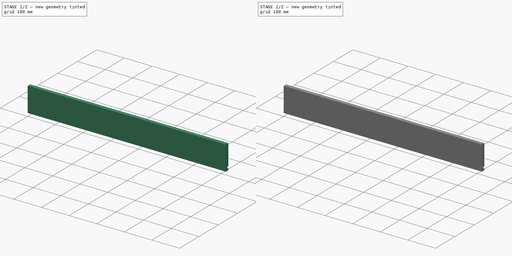
[diagram: build sequence overview — one tinted view per stage of 2, left to right]
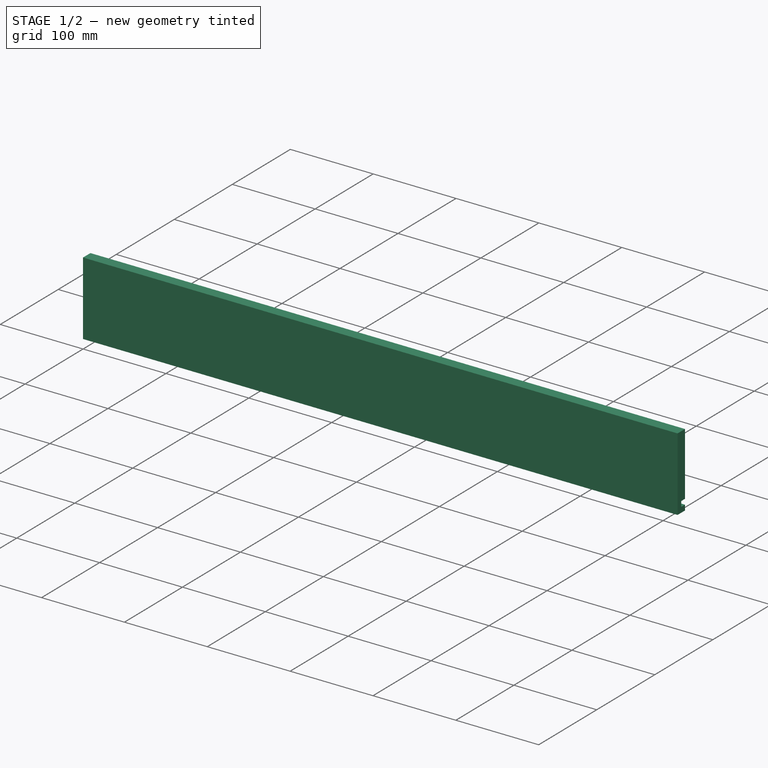
[diagram: stage 1 of 2 — iso view after this stage's code; geometry added in this stage tinted green]
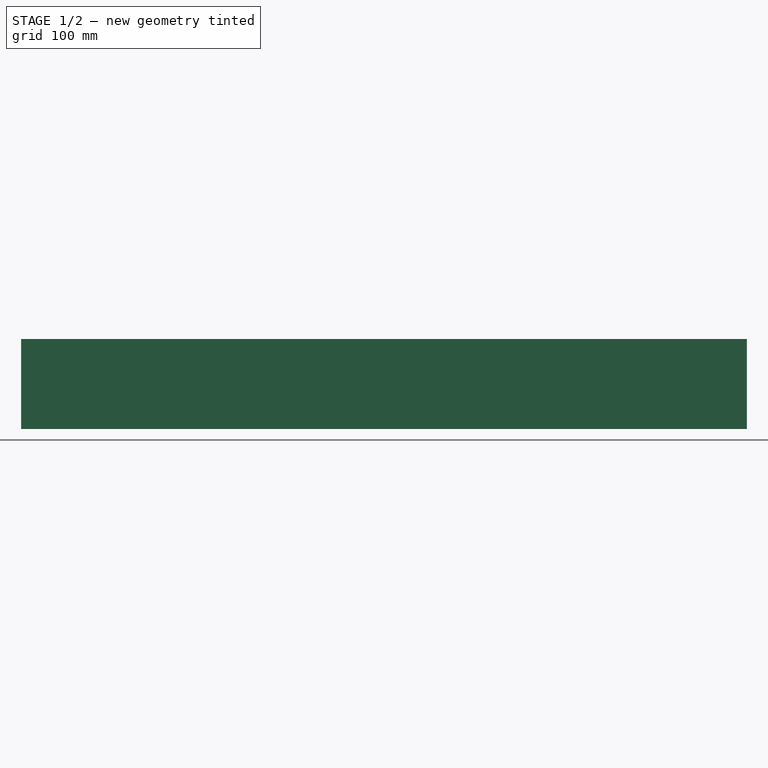
[diagram: stage 1 of 2 — front view after this stage's code; geometry added in this stage tinted green]
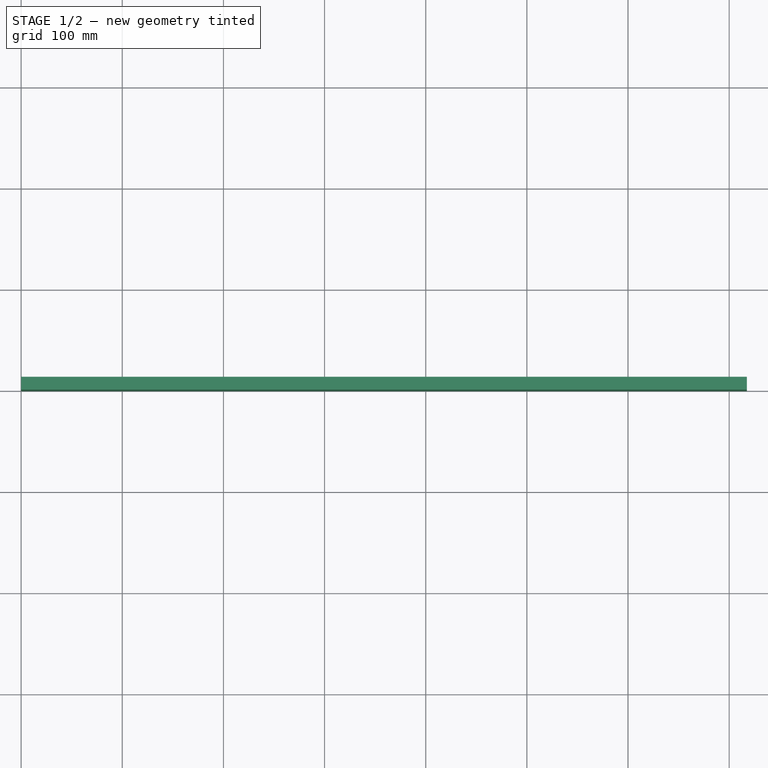
[diagram: stage 1 of 2 — top view after this stage's code; geometry added in this stage tinted green]
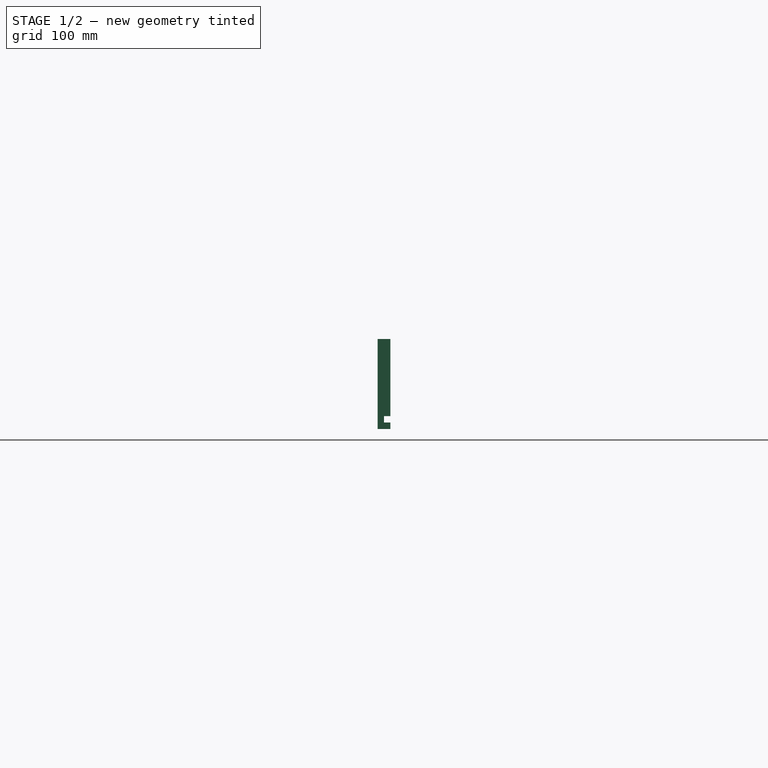
[diagram: stage 1 of 2 — right view after this stage's code; geometry added in this stage tinted green]
FCSTD DOCUMENT  (FreeCAD 0.19R24291 (Git))
Label: front2
License: All rights reserved
LicenseURL: http://en.wikipedia.org/wiki/All_rights_reserved
objects: Sketcher::SketchObject×2, PartDesign::Pad×1, PartDesign::Hole×1, PartDesign::Body×1
note: 7 computed .brp shape members not serialized (recipe doc carries the construction recipe); baked Part::Feature solids carry a one-line shape summary decoded from their .brp

FEATURE [Sketcher::SketchObject] Sketch
  FullyConstrained = true
  MapMode = 5
  Placement = pos=(0,0,0) rot=(0.57735,0.57735,0.57735;2.0944rad)
  Support = -> [YZ_Plane]
  expr: Constraints[22] = 1 / 4 * 25.4
  expr: Constraints[19] = 1 / 4 * 25.4
  expr: Constraints[7] = 0.5 * 25.4
  expr: Constraints[5] = 3.5 * 25.4
  sketch-geometry (8):
    g0: LineSegment StartX=0 StartY=0 StartZ=0 EndX=12.7 EndY=0 EndZ=0
    g1: LineSegment StartX=12.7 StartY=88.9 StartZ=0 EndX=0 EndY=88.9 EndZ=0
    g2: LineSegment StartX=0 StartY=88.9 StartZ=0 EndX=0 EndY=0 EndZ=0
    g3: LineSegment StartX=12.7 StartY=0 StartZ=0 EndX=12.7 EndY=6.35 EndZ=0
    g4: LineSegment StartX=12.7 StartY=6.35 StartZ=0 EndX=6.35 EndY=6.35 EndZ=0
    g5: LineSegment StartX=6.35 StartY=6.35 StartZ=0 EndX=6.35 EndY=12.7 EndZ=0
    g6: LineSegment StartX=6.35 StartY=12.7 StartZ=0 EndX=12.7 EndY=12.7 EndZ=0
    g7: LineSegment StartX=12.7 StartY=12.7 StartZ=0 EndX=12.7 EndY=88.9 EndZ=0
  constraints (23):
    c: Coincident(g1,g2)
    c: Coincident(g2,g0)
    c: Horizontal(g0)
    c: Horizontal(g1)
    c: Vertical(g2)
    c: DistanceY(g2,g2) = 88.9
    c: Coincident(g0,g-1)
    c: DistanceX(g0,g0) = 12.7
    c: Coincident(g0,g3)
    c: Vertical(g3)
    c: Coincident(g3,g4)
    c: Horizontal(g4)
    c: Coincident(g4,g5)
    c: Vertical(g5)
    c: Coincident(g5,g6)
    c: Horizontal(g6)
    c: Coincident(g6,g7)
    c: Coincident(g7,g1)
    c: Vertical(g7)
    c: DistanceY(g3,g3) = 6.35
    c: Equal(g0,g1)
    c: Equal(g3,g5)
    c: DistanceX(g6,g6) = 6.35
FEATURE [PartDesign::Pad] Pad
  Direction = (1,1,1)
  Length = 717.5
  Length2 = 100
  Placement = pos=(0,0,0) rot=(0.57735,0.57735,0.57735;2.0944rad)
  Profile = -> Sketch
  Type = 0
  expr: Length = 717.5
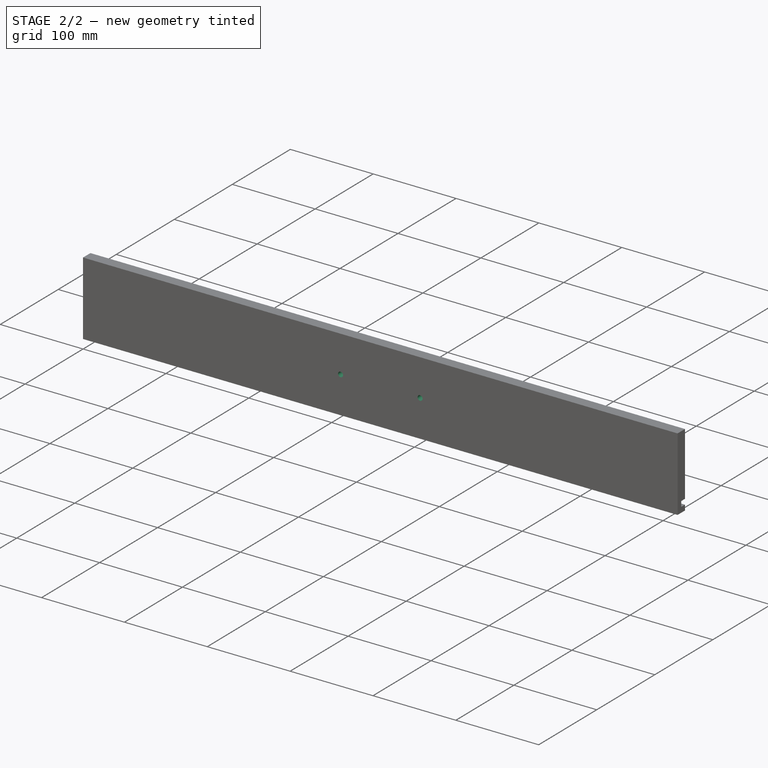
[diagram: stage 2 of 2 — iso view after this stage's code; geometry added in this stage tinted green]
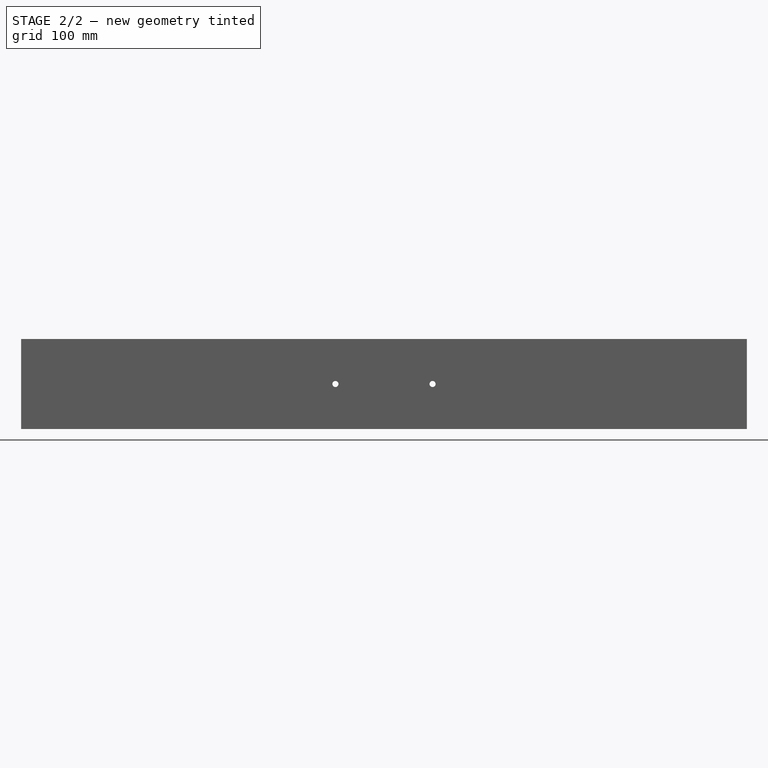
[diagram: stage 2 of 2 — front view after this stage's code; geometry added in this stage tinted green]
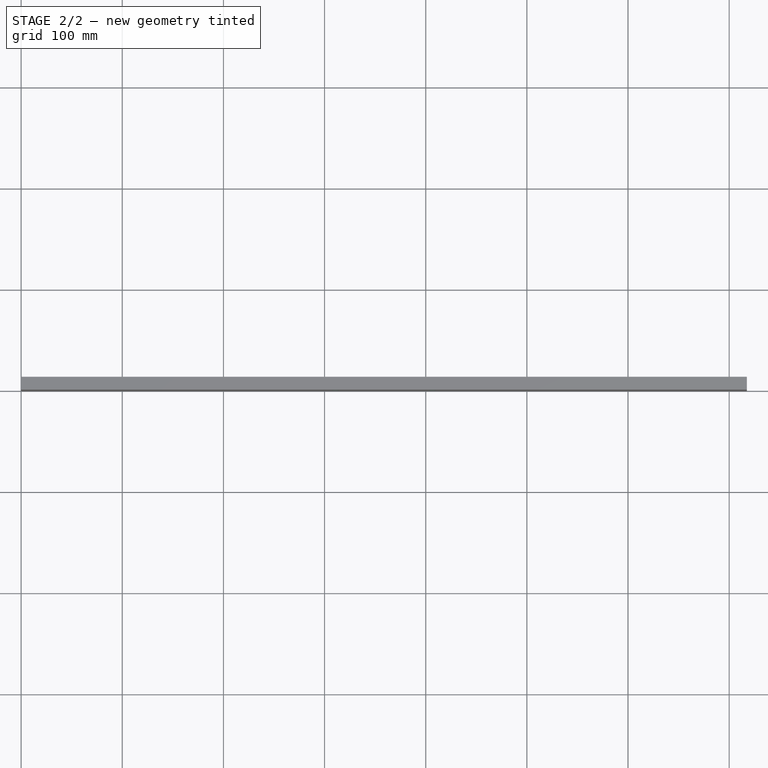
[diagram: stage 2 of 2 — top view after this stage's code; geometry added in this stage tinted green]
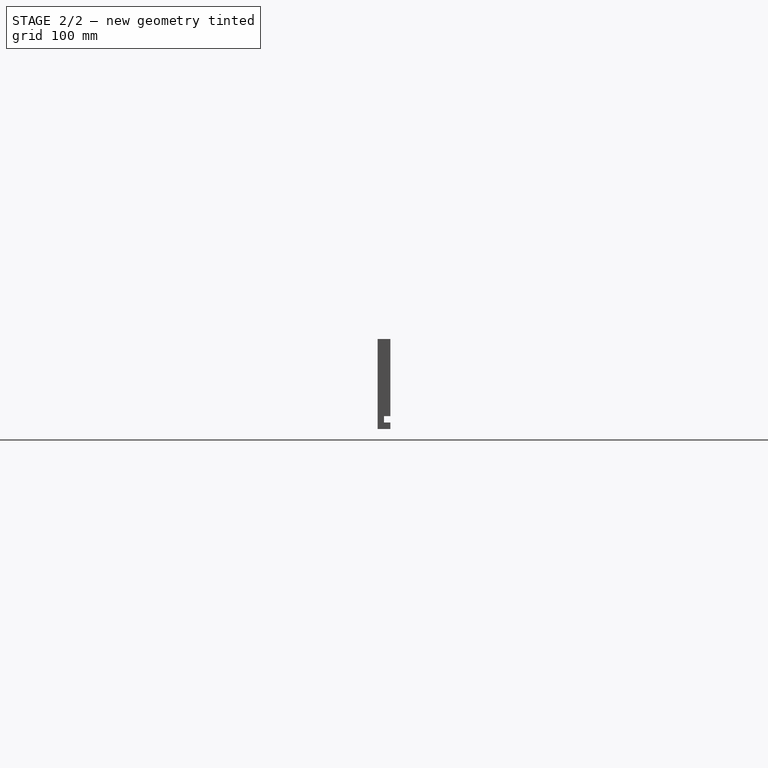
[diagram: stage 2 of 2 — right view after this stage's code; geometry added in this stage tinted green]
FEATURE [Sketcher::SketchObject] Sketch003
  FullyConstrained = false
  MapMode = 5
  Placement = pos=(0,5.1e-15,0) rot=(-0.57735,-0.57735,0.57735;4.18879rad)
  expr: Constraints[4] = 96 / 2
  expr: Constraints[7] = 96 / 2
  sketch-geometry (4):
    g0: LineSegment StartX=-44.45 StartY=-1.48e-14 StartZ=0 EndX=-44.45 EndY=717.5 EndZ=0
    g1: LineSegment StartX=-88.9 StartY=358.75 StartZ=0 EndX=0 EndY=358.75 EndZ=0
    g2: Circle CenterX=-44.45 CenterY=310.75 CenterZ=0 NormalX=0 NormalY=0 NormalZ=1 AngleXU=0 Radius=3
    g3: Circle CenterX=-44.45 CenterY=406.75 CenterZ=0 NormalX=0 NormalY=0 NormalZ=1 AngleXU=0 Radius=3
  constraints (8):
    c: Vertical(g0)
    c: PointOnObject(g1,g-2)
    c: Diameter(g2) = 6
    c: Equal(g3,g2)
    c: DistanceY(g2,g1) = 48
    c: PointOnObject(g2,g0)
    c: PointOnObject(g3,g0)
    c: DistanceY(g1,g3) = 48
FEATURE [PartDesign::Hole] Hole
  BaseFeature = -> Pad
  Depth = 25
  DepthType = 1
  Diameter = 6
  DrillForDepth = false
  DrillPoint = 1
  DrillPointAngle = 118
  HoleCutCountersinkAngle = 90
  HoleCutCustomValues = false
  HoleCutDepth = 0
  HoleCutDiameter = 6.1
  HoleCutType = 0
  ModelActualThread = false
  Placement = pos=(0,0,0) rot=(0.57735,0.57735,0.57735;2.0944rad)
  Profile = -> Sketch003
  Tapered = false
  TaperedAngle = 90
  ThreadAngle = 0
  ThreadClass = 0
  ThreadCutOffInner = 0
  ThreadCutOffOuter = 0
  ThreadDirection = 0
  ThreadFit = 0
  ThreadPitch = 0
  ThreadSize = 0
  ThreadType = 0
  Threaded = false
FEATURE [PartDesign::Body] Body
  Group = -> [Sketch,Pad,Sketch003,Hole]
  Origin = -> Origin
  Tip = -> Hole
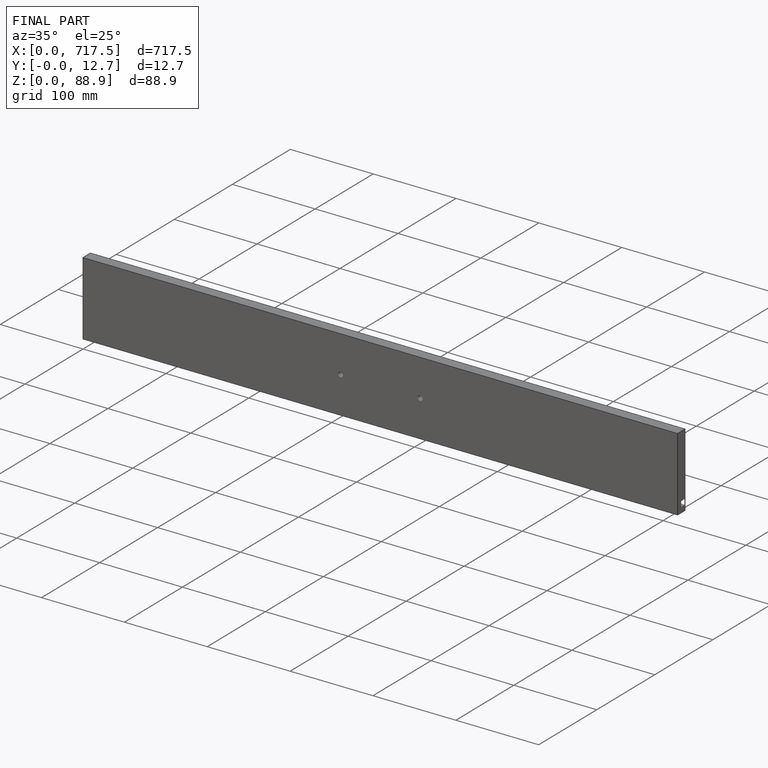
[diagram: finished part — iso view with bounding-box wireframe]
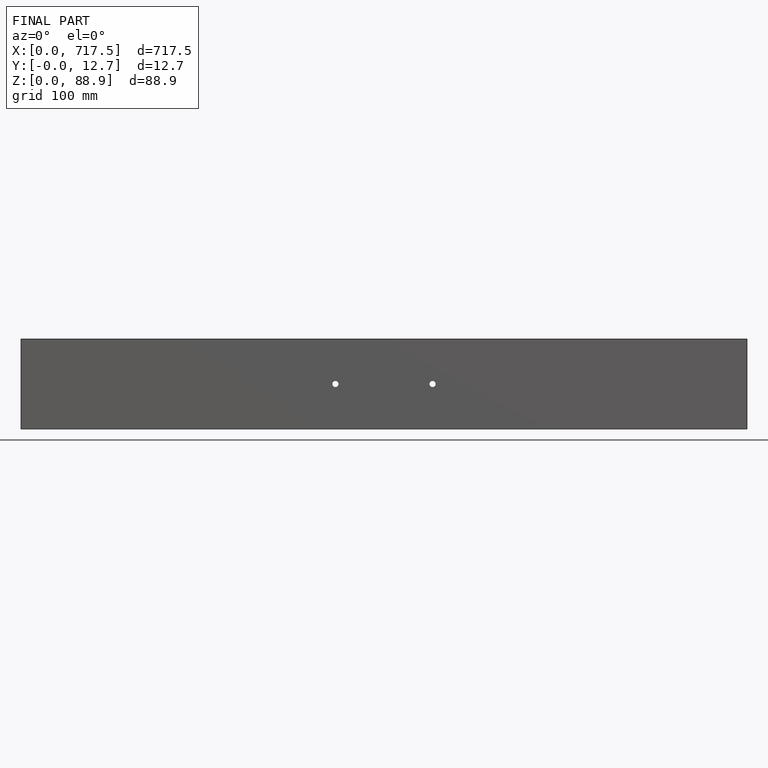
[diagram: finished part — front view with bounding-box wireframe]
